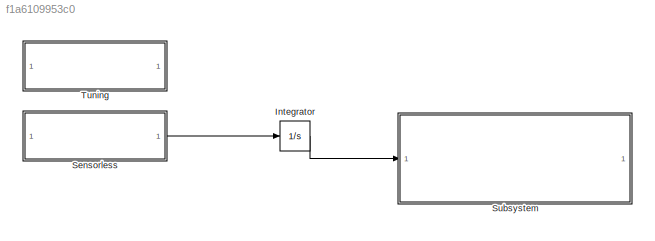
MODEL slx_f1a6109953c0
KIND model
CONFIG AbsTol = auto
CONFIG EnableMultiTasking = off
CONFIG FixedStep = auto
CONFIG MaxStep = auto
CONFIG MinStep = auto
CONFIG RelTol = 1e-3
CONFIG SampleTimeConstraint = Unconstrained
CONFIG SolverName = VariableStepAuto
CONFIG StartTime = 0.0
CONFIG StopTime = 8
WORKSPACE source: external: MATLAB File  (data not in archive)
BLOCK [Integrator] Integrator
BLOCK [ModelReference] Sensorless
  ModelNameDialog = FOC_Motor_Sensorless.slx
  ModelReferenceVersion = 11.48
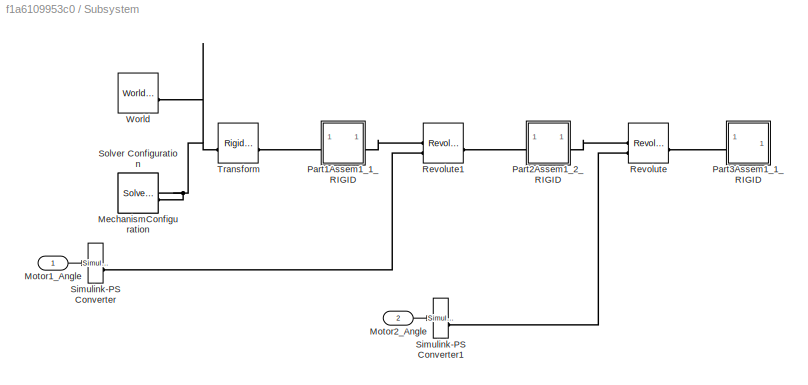
BLOCK [SubSystem] Subsystem
BLOCK [Reference] Subsystem/MechanismConfiguration  REF=sm_lib/Utilities/Mechanism
Configuration
  SourceBlock = sm_lib/Utilities/Mechanism\nConfiguration
  SourceType = Mechanism\nConfiguration
BLOCK [Inport] Subsystem/Motor1_Angle
BLOCK [Inport] Subsystem/Motor2_Angle
  Port = 2
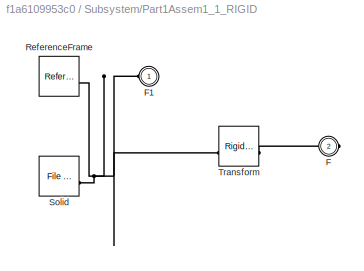
BLOCK [SubSystem] Subsystem/Part1Assem1_1_RIGID
BLOCK [PMIOPort] Subsystem/Part1Assem1_1_RIGID/F
  Port = 2
  Side = Right
BLOCK [PMIOPort] Subsystem/Part1Assem1_1_RIGID/F1
  Side = Left
BLOCK [Reference] Subsystem/Part1Assem1_1_RIGID/ReferenceFrame  REF=sm_lib/Frames and
Transforms/Reference
Frame
  SourceBlock = sm_lib/Frames and\nTransforms/Reference\nFrame
  SourceType = Reference\nFrame
BLOCK [Reference] Subsystem/Part1Assem1_1_RIGID/Solid  REF=sm_lib/Body Elements/File Solid
  SourceBlock = sm_lib/Body Elements/File Solid
  SourceType = File Solid
BLOCK [Reference] Subsystem/Part1Assem1_1_RIGID/Transform  REF=sm_lib/Frames and
Transforms/Rigid
Transform
  SourceBlock = sm_lib/Frames and\nTransforms/Rigid\nTransform
  SourceType = Rigid\nTransform
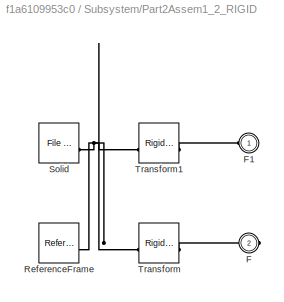
BLOCK [SubSystem] Subsystem/Part2Assem1_2_RIGID
BLOCK [PMIOPort] Subsystem/Part2Assem1_2_RIGID/F
  Port = 2
  Side = Right
BLOCK [PMIOPort] Subsystem/Part2Assem1_2_RIGID/F1
  Side = Left
BLOCK [Reference] Subsystem/Part2Assem1_2_RIGID/ReferenceFrame  REF=sm_lib/Frames and
Transforms/Reference
Frame
  SourceBlock = sm_lib/Frames and\nTransforms/Reference\nFrame
  SourceType = Reference\nFrame
BLOCK [Reference] Subsystem/Part2Assem1_2_RIGID/Solid  REF=sm_lib/Body Elements/File Solid
  SourceBlock = sm_lib/Body Elements/File Solid
  SourceType = File Solid
BLOCK [Reference] Subsystem/Part2Assem1_2_RIGID/Transform  REF=sm_lib/Frames and
Transforms/Rigid
Transform
  SourceBlock = sm_lib/Frames and\nTransforms/Rigid\nTransform
  SourceType = Rigid\nTransform
BLOCK [Reference] Subsystem/Part2Assem1_2_RIGID/Transform1  REF=sm_lib/Frames and
Transforms/Rigid
Transform
  SourceBlock = sm_lib/Frames and\nTransforms/Rigid\nTransform
  SourceType = Rigid\nTransform
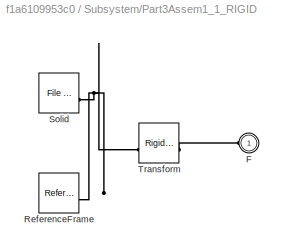
BLOCK [SubSystem] Subsystem/Part3Assem1_1_RIGID
BLOCK [PMIOPort] Subsystem/Part3Assem1_1_RIGID/F
  Side = Left
BLOCK [Reference] Subsystem/Part3Assem1_1_RIGID/ReferenceFrame  REF=sm_lib/Frames and
Transforms/Reference
Frame
  SourceBlock = sm_lib/Frames and\nTransforms/Reference\nFrame
  SourceType = Reference\nFrame
BLOCK [Reference] Subsystem/Part3Assem1_1_RIGID/Solid  REF=sm_lib/Body Elements/File Solid
  SourceBlock = sm_lib/Body Elements/File Solid
  SourceType = File Solid
BLOCK [Reference] Subsystem/Part3Assem1_1_RIGID/Transform  REF=sm_lib/Frames and
Transforms/Rigid
Transform
  SourceBlock = sm_lib/Frames and\nTransforms/Rigid\nTransform
  SourceType = Rigid\nTransform
BLOCK [Reference] Subsystem/Revolute  REF=sm_lib/Joints/Revolute Joint
  SourceBlock = sm_lib/Joints/Revolute Joint
  SourceType = Revolute Joint
BLOCK [Reference] Subsystem/Revolute1  REF=sm_lib/Joints/Revolute Joint
  SourceBlock = sm_lib/Joints/Revolute Joint
  SourceType = Revolute Joint
BLOCK [Reference] Subsystem/Simulink-PS Converter  REF=nesl_utility/Simulink-PS
Converter
  SourceBlock = nesl_utility/Simulink-PS\nConverter
  SourceType = Simulink-PS\nConverter
BLOCK [Reference] Subsystem/Simulink-PS Converter1  REF=nesl_utility/Simulink-PS
Converter
  SourceBlock = nesl_utility/Simulink-PS\nConverter
  SourceType = Simulink-PS\nConverter
BLOCK [Reference] Subsystem/Solver Configuration  REF=nesl_utility/Solver
Configuration
  SourceBlock = nesl_utility/Solver\nConfiguration
  SourceType = Solver\nConfiguration
BLOCK [Reference] Subsystem/Transform  REF=sm_lib/Frames and
Transforms/Rigid
Transform
  SourceBlock = sm_lib/Frames and\nTransforms/Rigid\nTransform
  SourceType = Rigid\nTransform
BLOCK [Reference] Subsystem/World  REF=sm_lib/Frames and
Transforms/World Frame
  SourceBlock = sm_lib/Frames and\nTransforms/World Frame
  SourceType = World Frame
BLOCK [ModelReference] Tuning
  Commented = on
  ModelNameDialog = FOC_Motor_Tuning.slx
  ModelReferenceVersion = 11.43
LINE Integrator:1 -> Subsystem:1
LINE Sensorless:1 -> Integrator:1
LINE Subsystem/Motor1_Angle:1 -> Subsystem/Simulink-PS Converter:1
LINE Subsystem/Motor2_Angle:1 -> Subsystem/Simulink-PS Converter1:1
PNET net1: Subsystem/MechanismConfiguration:RConn1 -- Subsystem/Solver Configuration:RConn1 -- Subsystem/Transform:LConn1 -- Subsystem/World:RConn1
PNET net2: Subsystem/Part1Assem1_1_RIGID/F1:RConn1 -- Subsystem/Part1Assem1_1_RIGID/ReferenceFrame:RConn1 -- Subsystem/Part1Assem1_1_RIGID/Solid:RConn1 -- Subsystem/Part1Assem1_1_RIGID/Transform:LConn1
PLINE Subsystem/Part1Assem1_1_RIGID/F:RConn1 -- Subsystem/Part1Assem1_1_RIGID/Transform:RConn1
PLINE Subsystem/Part1Assem1_1_RIGID:LConn1 -- Subsystem/Transform:RConn1
PLINE Subsystem/Part1Assem1_1_RIGID:RConn1 -- Subsystem/Revolute1:LConn1
PLINE Subsystem/Part2Assem1_2_RIGID/F1:RConn1 -- Subsystem/Part2Assem1_2_RIGID/Transform1:RConn1
PLINE Subsystem/Part2Assem1_2_RIGID/F:RConn1 -- Subsystem/Part2Assem1_2_RIGID/Transform:RConn1
PNET net3: Subsystem/Part2Assem1_2_RIGID/ReferenceFrame:RConn1 -- Subsystem/Part2Assem1_2_RIGID/Solid:RConn1 -- Subsystem/Part2Assem1_2_RIGID/Transform1:LConn1 -- Subsystem/Part2Assem1_2_RIGID/Transform:LConn1
PLINE Subsystem/Part2Assem1_2_RIGID:LConn1 -- Subsystem/Revolute1:RConn1
PLINE Subsystem/Part2Assem1_2_RIGID:RConn1 -- Subsystem/Revolute:LConn1
PLINE Subsystem/Part3Assem1_1_RIGID/F:RConn1 -- Subsystem/Part3Assem1_1_RIGID/Transform:RConn1
PNET net4: Subsystem/Part3Assem1_1_RIGID/ReferenceFrame:RConn1 -- Subsystem/Part3Assem1_1_RIGID/Solid:RConn1 -- Subsystem/Part3Assem1_1_RIGID/Transform:LConn1
PLINE Subsystem/Part3Assem1_1_RIGID:LConn1 -- Subsystem/Revolute:RConn1
PLINE Subsystem/Revolute1:LConn2 -- Subsystem/Simulink-PS Converter:RConn1
PLINE Subsystem/Revolute:LConn2 -- Subsystem/Simulink-PS Converter1:RConn1
note: PNET lines group multi-terminal physical nets as a canonical sorted terminal list (undirected conserving connections); 2-terminal nets keep the pairwise PLINE form
